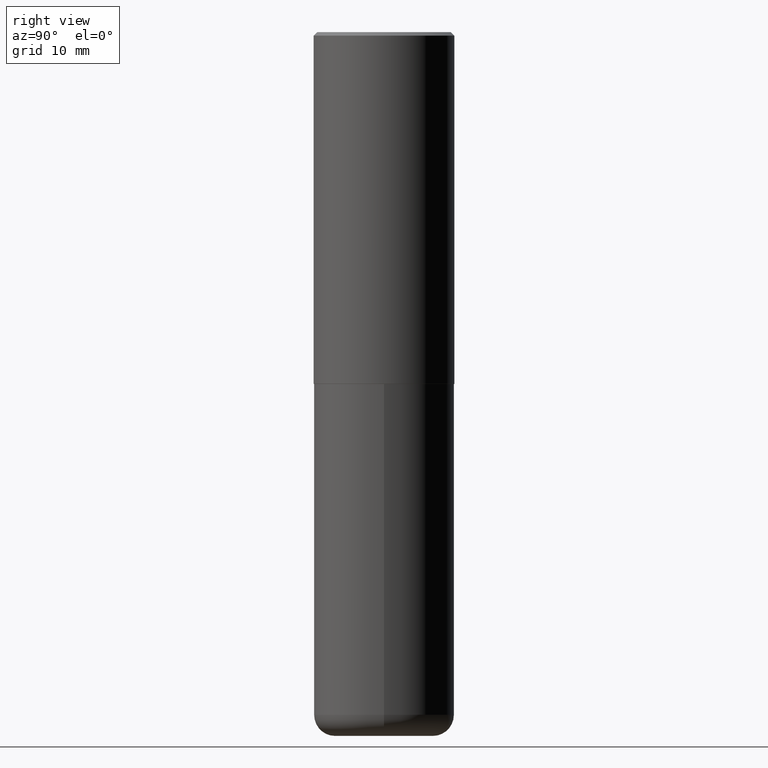
[diagram: clean part render]
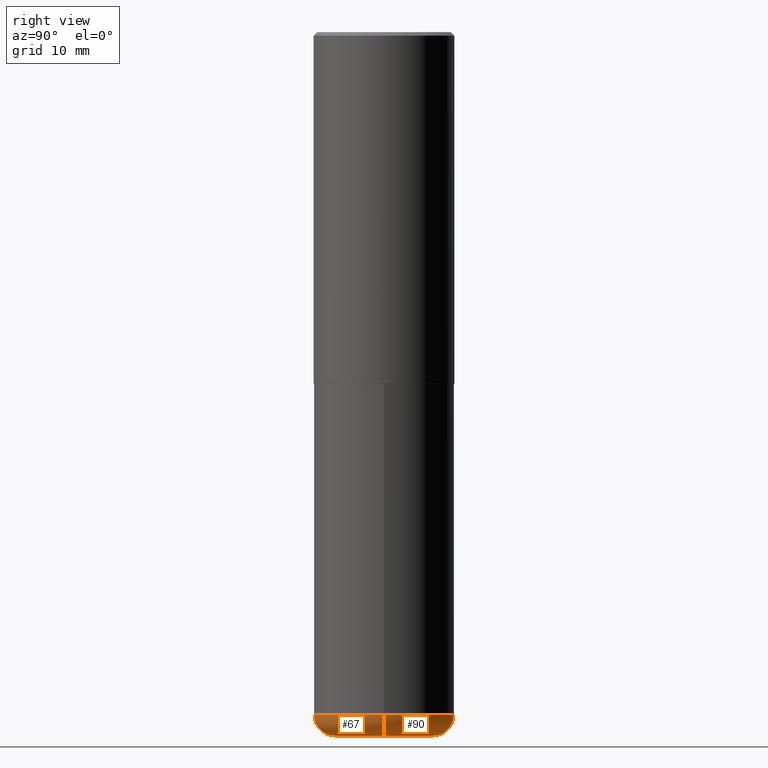
[diagram: same view with one multi-face feature highlighted, each face labeled with its STEP entity id]
A machine part, right view. The highlighted faces form ONE feature: a constant-radius fillet chain: 2 tangent blend faces with common blend radius 2.9997 mm. The faces share edges in the B-rep.
Their STEP definitions:
[1] entity #67 (Torus):
#11 = EDGE_LOOP ( 'NONE', ( #216, #82, #111, #22 ) ) ;
#22 = ORIENTED_EDGE ( 'NONE', *, *, #46, .F. ) ;
#39 = DIRECTION ( 'NONE',  ( -2.445468806185136597E-29, 3.491481338843145583E-15, 1.000000000000000000 ) ) ;
#40 = DIRECTION ( 'NONE',  ( 7.105427357601001859E-15, 1.000000000000000000, -3.491481338843145583E-15 ) ) ;
#46 = EDGE_CURVE ( 'NONE', #332, #57, #312, .T. ) ;
#50 = EDGE_CURVE ( 'NONE', #370, #57, #283, .T. ) ;
#57 = VERTEX_POINT ( 'NONE', #329 ) ;
#67 = ADVANCED_FACE ( 'NONE', ( #161 ), #244, .T. ) ;
#74 = CARTESIAN_POINT ( 'NONE',  ( -0.2756000000000000116, -1.116195879274560421E-14, -3.937000000000000277 ) ) ;
#82 = ORIENTED_EDGE ( 'NONE', *, *, #233, .T. ) ;
#87 = CARTESIAN_POINT ( 'NONE',  ( -0.3937000000000000499, -1.053621133422057529E-14, -3.818900000000000183 ) ) ;
#88 = CIRCLE ( 'NONE', #355, 0.1180999999999999966 ) ;
#109 = AXIS2_PLACEMENT_3D ( 'NONE', #411, #128, #223 ) ;
#111 = ORIENTED_EDGE ( 'NONE', *, *, #50, .T. ) ;
#128 = DIRECTION ( 'NONE',  ( -2.445468806185136597E-29, 3.491481338843145583E-15, 1.000000000000000000 ) ) ;
#139 = DIRECTION ( 'NONE',  ( -1.000000000000000000, 7.105427357601005014E-15, 0.000000000000000000 ) ) ;
#154 = VERTEX_POINT ( 'NONE', #74 ) ;
#161 = FACE_OUTER_BOUND ( 'NONE', #11, .T. ) ;
#167 = CARTESIAN_POINT ( 'NONE',  ( -0.2756000000000000116, -1.137536230515325427E-14, -3.818900000000000183 ) ) ;
#170 = EDGE_CURVE ( 'NONE', #154, #332, #88, .T. ) ;
#175 = AXIS2_PLACEMENT_3D ( 'NONE', #345, #336, #251 ) ;
#195 = DIRECTION ( 'NONE',  ( 1.000000000000000000, -6.982962677686268288E-15, 4.883557194083112901E-29 ) ) ;
#216 = ORIENTED_EDGE ( 'NONE', *, *, #170, .F. ) ;
#223 = DIRECTION ( 'NONE',  ( 1.000000000000000000, -6.982962677686267499E-15, 0.000000000000000000 ) ) ;
#231 = CIRCLE ( 'NONE', #372, 0.2756000000000000116 ) ;
#232 = DIRECTION ( 'NONE',  ( 1.000000000000000000, -6.982962677686265922E-15, 0.000000000000000000 ) ) ;
#233 = EDGE_CURVE ( 'NONE', #154, #370, #231, .T. ) ;
#244 = TOROIDAL_SURFACE ( 'NONE', #331, 0.2756000000000000116, 0.1181000000000000105 ) ;
#251 = DIRECTION ( 'NONE',  ( 1.000000000000000000, -6.982962677686273021E-15, 0.000000000000000000 ) ) ;
#271 = CARTESIAN_POINT ( 'NONE',  ( 0.2756000000000000116, -1.567046654499579837E-14, -3.937000000000000277 ) ) ;
#283 = CIRCLE ( 'NONE', #175, 0.1180999999999999966 ) ;
#291 = CARTESIAN_POINT ( 'NONE',  ( 9.339000823940418668E-29, -1.333361808490808928E-14, -3.818900000000000183 ) ) ;
#312 = CIRCLE ( 'NONE', #109, 0.3937000000000000499 ) ;
#325 = CARTESIAN_POINT ( 'NONE',  ( 9.627810689950883669E-29, -1.374596203102546341E-14, -3.937000000000000277 ) ) ;
#329 = CARTESIAN_POINT ( 'NONE',  ( 0.3937000000000000499, -1.608281049111317408E-14, -3.818900000000000183 ) ) ;
#331 = AXIS2_PLACEMENT_3D ( 'NONE', #291, #394, #195 ) ;
#332 = VERTEX_POINT ( 'NONE', #87 ) ;
#336 = DIRECTION ( 'NONE',  ( -6.982962677686266711E-15, -1.000000000000000000, 3.491481338843145583E-15 ) ) ;
#345 = CARTESIAN_POINT ( 'NONE',  ( 0.2756000000000000116, -1.525812259887842581E-14, -3.818900000000000183 ) ) ;
#355 = AXIS2_PLACEMENT_3D ( 'NONE', #167, #40, #139 ) ;
#370 = VERTEX_POINT ( 'NONE', #271 ) ;
#372 = AXIS2_PLACEMENT_3D ( 'NONE', #325, #39, #232 ) ;
#394 = DIRECTION ( 'NONE',  ( -2.445468806185136597E-29, 3.491481338843145583E-15, 1.000000000000000000 ) ) ;
#411 = CARTESIAN_POINT ( 'NONE',  ( 9.339000823940418668E-29, -1.333361808490808928E-14, -3.818900000000000183 ) ) ;
[2] entity #90 (Torus):
#16 = AXIS2_PLACEMENT_3D ( 'NONE', #286, #110, #353 ) ;
#38 = AXIS2_PLACEMENT_3D ( 'NONE', #335, #269, #83 ) ;
#40 = DIRECTION ( 'NONE',  ( 7.105427357601001859E-15, 1.000000000000000000, -3.491481338843145583E-15 ) ) ;
#50 = EDGE_CURVE ( 'NONE', #370, #57, #283, .T. ) ;
#57 = VERTEX_POINT ( 'NONE', #329 ) ;
#72 = FACE_OUTER_BOUND ( 'NONE', #76, .T. ) ;
#74 = CARTESIAN_POINT ( 'NONE',  ( -0.2756000000000000116, -1.116195879274560421E-14, -3.937000000000000277 ) ) ;
#76 = EDGE_LOOP ( 'NONE', ( #272, #343, #179, #95 ) ) ;
#83 = DIRECTION ( 'NONE',  ( 1.000000000000000000, -6.982962677686267499E-15, 0.000000000000000000 ) ) ;
#87 = CARTESIAN_POINT ( 'NONE',  ( -0.3937000000000000499, -1.053621133422057529E-14, -3.818900000000000183 ) ) ;
#88 = CIRCLE ( 'NONE', #355, 0.1180999999999999966 ) ;
#90 = ADVANCED_FACE ( 'NONE', ( #72 ), #415, .T. ) ;
#95 = ORIENTED_EDGE ( 'NONE', *, *, #50, .F. ) ;
#107 = DIRECTION ( 'NONE',  ( 1.000000000000000000, -6.982962677686265922E-15, 0.000000000000000000 ) ) ;
#110 = DIRECTION ( 'NONE',  ( -2.445468806185136597E-29, 3.491481338843145583E-15, 1.000000000000000000 ) ) ;
#116 = CIRCLE ( 'NONE', #257, 0.2756000000000000116 ) ;
#139 = DIRECTION ( 'NONE',  ( -1.000000000000000000, 7.105427357601005014E-15, 0.000000000000000000 ) ) ;
#154 = VERTEX_POINT ( 'NONE', #74 ) ;
#167 = CARTESIAN_POINT ( 'NONE',  ( -0.2756000000000000116, -1.137536230515325427E-14, -3.818900000000000183 ) ) ;
#170 = EDGE_CURVE ( 'NONE', #154, #332, #88, .T. ) ;
#172 = DIRECTION ( 'NONE',  ( -2.445468806185136597E-29, 3.491481338843145583E-15, 1.000000000000000000 ) ) ;
#175 = AXIS2_PLACEMENT_3D ( 'NONE', #345, #336, #251 ) ;
#179 = ORIENTED_EDGE ( 'NONE', *, *, #310, .F. ) ;
#190 = EDGE_CURVE ( 'NONE', #370, #154, #116, .T. ) ;
#251 = DIRECTION ( 'NONE',  ( 1.000000000000000000, -6.982962677686273021E-15, 0.000000000000000000 ) ) ;
#257 = AXIS2_PLACEMENT_3D ( 'NONE', #261, #172, #107 ) ;
#259 = CIRCLE ( 'NONE', #38, 0.3937000000000000499 ) ;
#261 = CARTESIAN_POINT ( 'NONE',  ( 9.627810689950883669E-29, -1.374596203102546341E-14, -3.937000000000000277 ) ) ;
#269 = DIRECTION ( 'NONE',  ( -2.445468806185136597E-29, 3.491481338843145583E-15, 1.000000000000000000 ) ) ;
#271 = CARTESIAN_POINT ( 'NONE',  ( 0.2756000000000000116, -1.567046654499579837E-14, -3.937000000000000277 ) ) ;
#272 = ORIENTED_EDGE ( 'NONE', *, *, #190, .T. ) ;
#283 = CIRCLE ( 'NONE', #175, 0.1180999999999999966 ) ;
#286 = CARTESIAN_POINT ( 'NONE',  ( 9.339000823940418668E-29, -1.333361808490808928E-14, -3.818900000000000183 ) ) ;
#310 = EDGE_CURVE ( 'NONE', #57, #332, #259, .T. ) ;
#329 = CARTESIAN_POINT ( 'NONE',  ( 0.3937000000000000499, -1.608281049111317408E-14, -3.818900000000000183 ) ) ;
#332 = VERTEX_POINT ( 'NONE', #87 ) ;
#335 = CARTESIAN_POINT ( 'NONE',  ( 9.339000823940418668E-29, -1.333361808490808928E-14, -3.818900000000000183 ) ) ;
#336 = DIRECTION ( 'NONE',  ( -6.982962677686266711E-15, -1.000000000000000000, 3.491481338843145583E-15 ) ) ;
#343 = ORIENTED_EDGE ( 'NONE', *, *, #170, .T. ) ;
#345 = CARTESIAN_POINT ( 'NONE',  ( 0.2756000000000000116, -1.525812259887842581E-14, -3.818900000000000183 ) ) ;
#353 = DIRECTION ( 'NONE',  ( 1.000000000000000000, -6.982962677686268288E-15, 4.883557194083112901E-29 ) ) ;
#355 = AXIS2_PLACEMENT_3D ( 'NONE', #167, #40, #139 ) ;
#370 = VERTEX_POINT ( 'NONE', #271 ) ;
#415 = TOROIDAL_SURFACE ( 'NONE', #16, 0.2756000000000000116, 0.1181000000000000105 ) ;